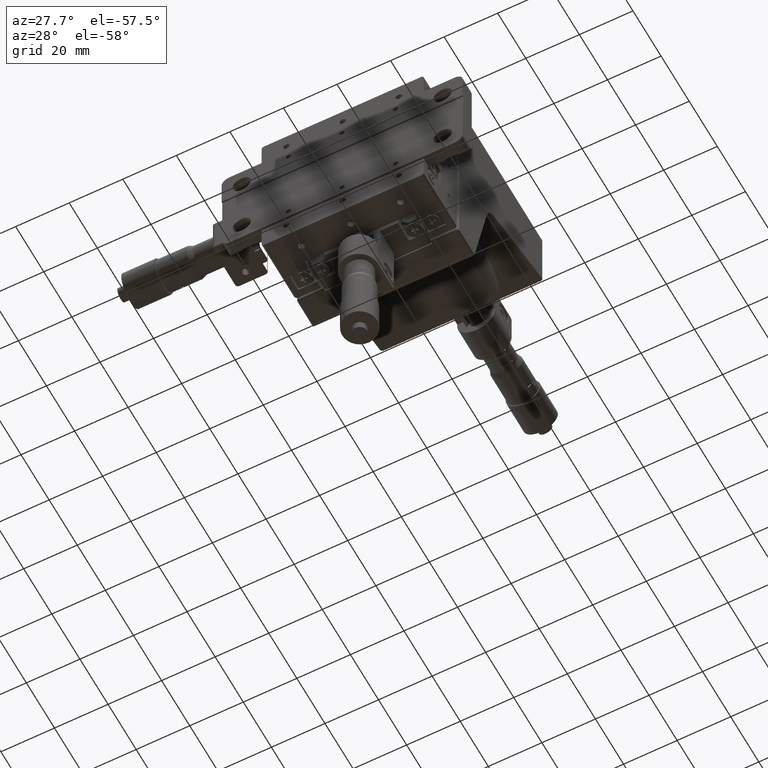
[diagram: clean part render]
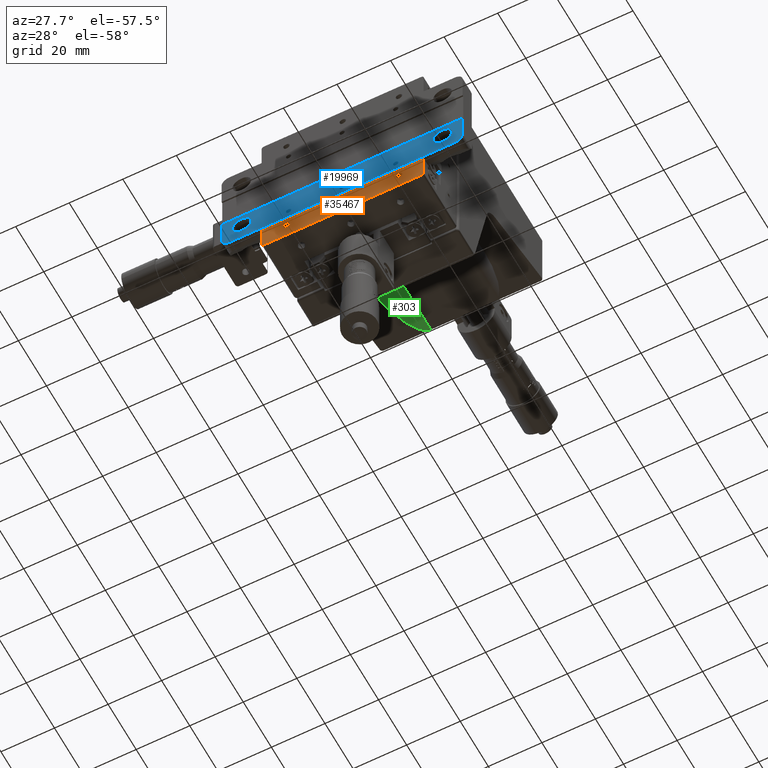
[diagram: same view with three faces highlighted in distinct colors, each labeled with its STEP entity id]
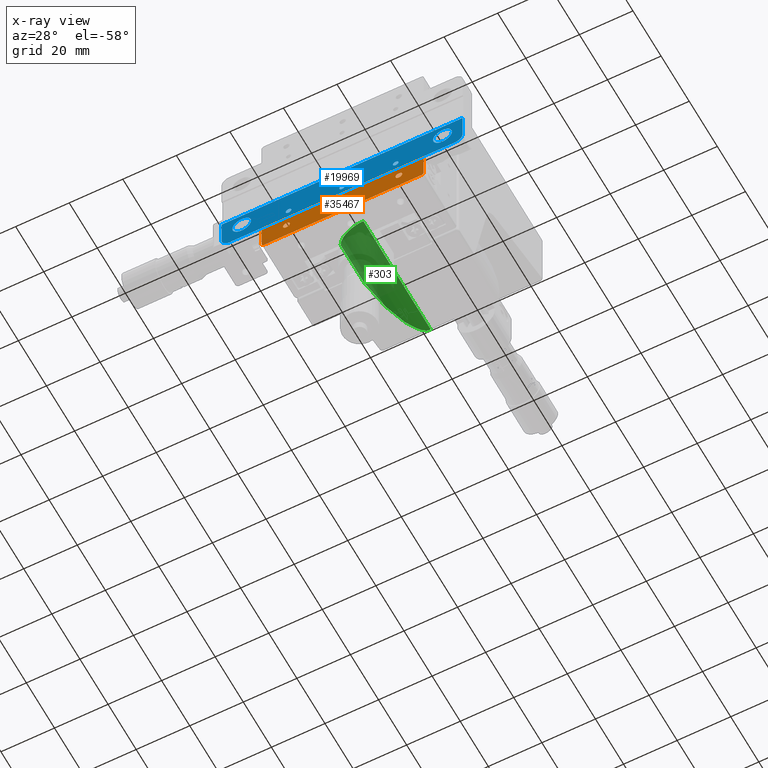
[diagram: x-ray of the same camera — body ghosted, the three highlighted faces saturated]
A machine part, auxiliary view with three faces highlighted in distinct colors.
The next image is the same camera in x-ray (body ghosted, the three faces saturated) — at least one of them is partly hidden behind the body in this view.
Their STEP definitions:

[orange] entity #35467 — the highlighted planar face has unit normal (0, 1, 0).
#748 = CIRCLE ( 'NONE', #40161, 1.249999999999987100 ) ;
#2029 = DIRECTION ( 'NONE',  ( 0.0000000000000000000, 0.0000000000000000000, -1.000000000000000000 ) ) ;
#2791 = ORIENTED_EDGE ( 'NONE', *, *, #20916, .T. ) ;
#3450 = CARTESIAN_POINT ( 'NONE',  ( 21.00000000000000400, 0.1999999999999952100, -23.00000000000003600 ) ) ;
#4848 = ORIENTED_EDGE ( 'NONE', *, *, #34387, .F. ) ;
#8923 = VERTEX_POINT ( 'NONE', #3450 ) ;
#10701 = VERTEX_POINT ( 'NONE', #59562 ) ;
#12714 = VERTEX_POINT ( 'NONE', #47303 ) ;
#12719 = CARTESIAN_POINT ( 'NONE',  ( -21.00000000000000400, 0.1999999999999952100, -23.00000000000003600 ) ) ;
#12756 = CARTESIAN_POINT ( 'NONE',  ( -30.25000000000000000, 0.1999999999999895200, -20.50000000000000000 ) ) ;
#13141 = FACE_BOUND ( 'NONE', #52831, .T. ) ;
#13299 = VERTEX_POINT ( 'NONE', #65098 ) ;
#15661 = VERTEX_POINT ( 'NONE', #12756 ) ;
#17523 = CARTESIAN_POINT ( 'NONE',  ( 1.665334536938784000E-017, 0.1999999999999952100, -24.25000000000002100 ) ) ;
#17960 = CIRCLE ( 'NONE', #31331, 1.249999999999987100 ) ;
#18312 = EDGE_CURVE ( 'NONE', #83073, #12714, #69806, .T. ) ;
#18916 = ORIENTED_EDGE ( 'NONE', *, *, #77470, .F. ) ;
#19535 = AXIS2_PLACEMENT_3D ( 'NONE', #75951, #34976, #82901 ) ;
#20184 = AXIS2_PLACEMENT_3D ( 'NONE', #37349, #85286, #44263 ) ;
#20916 = EDGE_CURVE ( 'NONE', #12714, #31267, #71189, .T. ) ;
#22826 = VECTOR ( 'NONE', #43888, 1000.000000000000000 ) ;
#23858 = CARTESIAN_POINT ( 'NONE',  ( 1.697341952628057400E-016, 0.1999999999999952100, -23.00000000000003600 ) ) ;
#24392 = DIRECTION ( 'NONE',  ( 0.0000000000000000000, 0.0000000000000000000, -1.000000000000000000 ) ) ;
#24784 = CIRCLE ( 'NONE', #19535, 1.249999999999987100 ) ;
#24889 = CIRCLE ( 'NONE', #66254, 1.249999999999987100 ) ;
#25031 = CARTESIAN_POINT ( 'NONE',  ( 1.665334536938784000E-017, 0.1999999999999952100, -24.25000000000002100 ) ) ;
#26727 = CARTESIAN_POINT ( 'NONE',  ( 21.00000000000000400, 0.1999999999999952100, -24.25000000000002100 ) ) ;
#26891 = ORIENTED_EDGE ( 'NONE', *, *, #70702, .F. ) ;
#27270 = CARTESIAN_POINT ( 'NONE',  ( 29.25000000000000000, 0.1999999999999966200, -29.25000000000000000 ) ) ;
#27381 = DIRECTION ( 'NONE',  ( -0.0000000000000000000, -0.0000000000000000000, -1.000000000000000000 ) ) ;
#27407 = ORIENTED_EDGE ( 'NONE', *, *, #32946, .F. ) ;
#28844 = CARTESIAN_POINT ( 'NONE',  ( -30.25000000000000000, 0.1999999999999966200, -29.25000000000000000 ) ) ;
#30087 = EDGE_CURVE ( 'NONE', #82030, #83073, #82127, .T. ) ;
#31267 = VERTEX_POINT ( 'NONE', #66737 ) ;
#31331 = AXIS2_PLACEMENT_3D ( 'NONE', #72314, #31347, #79200 ) ;
#31347 = DIRECTION ( 'NONE',  ( -0.0000000000000000000, -1.000000000000000000, -0.0000000000000000000 ) ) ;
#31881 = DIRECTION ( 'NONE',  ( 0.0000000000000000000, 0.0000000000000000000, -1.000000000000000000 ) ) ;
#32946 = EDGE_CURVE ( 'NONE', #8923, #10701, #17960, .T. ) ;
#33563 = DIRECTION ( 'NONE',  ( 0.0000000000000000000, 0.0000000000000000000, -1.000000000000000000 ) ) ;
#34116 = DIRECTION ( 'NONE',  ( 0.0000000000000000000, 0.0000000000000000000, 1.000000000000000000 ) ) ;
#34331 = VERTEX_POINT ( 'NONE', #23858 ) ;
#34387 = EDGE_CURVE ( 'NONE', #15661, #46945, #34747, .T. ) ;
#34747 = LINE ( 'NONE', #51674, #52999 ) ;
#34780 = PLANE ( 'NONE',  #73370 ) ;
#34976 = DIRECTION ( 'NONE',  ( -0.0000000000000000000, -1.000000000000000000, -0.0000000000000000000 ) ) ;
#35363 = DIRECTION ( 'NONE',  ( 0.0000000000000000000, 1.000000000000000000, 0.0000000000000000000 ) ) ;
#35467 = ADVANCED_FACE ( 'NONE', ( #49448, #65556, #13141, #71951 ), #34780, .F. ) ;
#35785 = EDGE_CURVE ( 'NONE', #62178, #73474, #24784, .T. ) ;
#36963 = CARTESIAN_POINT ( 'NONE',  ( 30.25000000000000000, 0.1999999999999966200, 30.25000000000000000 ) ) ;
#37349 = CARTESIAN_POINT ( 'NONE',  ( -29.25000000000000000, 0.1999999999999966200, -29.25000000000000000 ) ) ;
#37757 = EDGE_CURVE ( 'NONE', #34331, #13299, #748, .T. ) ;
#39579 = ORIENTED_EDGE ( 'NONE', *, *, #30087, .T. ) ;
#40161 = AXIS2_PLACEMENT_3D ( 'NONE', #25031, #72858, #31881 ) ;
#40830 = ORIENTED_EDGE ( 'NONE', *, *, #86173, .F. ) ;
#42874 = EDGE_CURVE ( 'NONE', #13299, #34331, #59122, .T. ) ;
#42955 = DIRECTION ( 'NONE',  ( -0.0000000000000000000, -1.000000000000000000, -0.0000000000000000000 ) ) ;
#43888 = DIRECTION ( 'NONE',  ( -0.0000000000000000000, -0.0000000000000000000, -1.000000000000000000 ) ) ;
#44263 = DIRECTION ( 'NONE',  ( 0.0000000000000000000, 0.0000000000000000000, 1.000000000000000000 ) ) ;
#45335 = EDGE_LOOP ( 'NONE', ( #26891, #27407 ) ) ;
#46142 = ORIENTED_EDGE ( 'NONE', *, *, #35785, .F. ) ;
#46250 = VECTOR ( 'NONE', #27381, 1000.000000000000000 ) ;
#46945 = VERTEX_POINT ( 'NONE', #87976 ) ;
#47303 = CARTESIAN_POINT ( 'NONE',  ( 29.25000000000000000, 0.1999999999999966200, -30.25000000000000000 ) ) ;
#49028 = AXIS2_PLACEMENT_3D ( 'NONE', #83990, #42955, #2029 ) ;
#49448 = FACE_BOUND ( 'NONE', #45335, .T. ) ;
#50912 = AXIS2_PLACEMENT_3D ( 'NONE', #17523, #65401, #24392 ) ;
#51105 = EDGE_LOOP ( 'NONE', ( #46142, #18916 ) ) ;
#51632 = VECTOR ( 'NONE', #55099, 1000.000000000000000 ) ;
#51674 = CARTESIAN_POINT ( 'NONE',  ( -30.25000000000000000, 0.1999999999999895200, -20.50000000000000000 ) ) ;
#52831 = EDGE_LOOP ( 'NONE', ( #88402, #61485 ) ) ;
#52999 = VECTOR ( 'NONE', #86368, 1000.000000000000000 ) ;
#55099 = DIRECTION ( 'NONE',  ( 1.000000000000000000, 0.0000000000000000000, 0.0000000000000000000 ) ) ;
#55606 = CARTESIAN_POINT ( 'NONE',  ( -29.25000000000000000, 0.1999999999999966200, -30.25000000000000000 ) ) ;
#55895 = CIRCLE ( 'NONE', #49028, 1.249999999999987100 ) ;
#59122 = CIRCLE ( 'NONE', #50912, 1.249999999999987100 ) ;
#59562 = CARTESIAN_POINT ( 'NONE',  ( 21.00000000000000400, 0.1999999999999952100, -25.50000000000000700 ) ) ;
#59766 = EDGE_LOOP ( 'NONE', ( #64955, #39579, #70784, #2791, #40830, #4848 ) ) ;
#61485 = ORIENTED_EDGE ( 'NONE', *, *, #37757, .F. ) ;
#62178 = VERTEX_POINT ( 'NONE', #74306 ) ;
#62420 = AXIS2_PLACEMENT_3D ( 'NONE', #27270, #75070, #34116 ) ;
#64955 = ORIENTED_EDGE ( 'NONE', *, *, #86467, .T. ) ;
#65098 = CARTESIAN_POINT ( 'NONE',  ( 1.665334536938784000E-017, 0.1999999999999952100, -25.50000000000000700 ) ) ;
#65401 = DIRECTION ( 'NONE',  ( -0.0000000000000000000, -1.000000000000000000, -0.0000000000000000000 ) ) ;
#65556 = FACE_BOUND ( 'NONE', #51105, .T. ) ;
#66254 = AXIS2_PLACEMENT_3D ( 'NONE', #26727, #74544, #33563 ) ;
#66737 = CARTESIAN_POINT ( 'NONE',  ( 30.25000000000000000, 0.1999999999999966200, -29.25000000000000000 ) ) ;
#69806 = LINE ( 'NONE', #82313, #51632 ) ;
#70702 = EDGE_CURVE ( 'NONE', #10701, #8923, #24889, .T. ) ;
#70784 = ORIENTED_EDGE ( 'NONE', *, *, #18312, .T. ) ;
#71189 = CIRCLE ( 'NONE', #62420, 1.000000000000000900 ) ;
#71951 = FACE_OUTER_BOUND ( 'NONE', #59766, .T. ) ;
#72314 = CARTESIAN_POINT ( 'NONE',  ( 21.00000000000000400, 0.1999999999999952100, -24.25000000000002100 ) ) ;
#72858 = DIRECTION ( 'NONE',  ( -0.0000000000000000000, -1.000000000000000000, -0.0000000000000000000 ) ) ;
#73370 = AXIS2_PLACEMENT_3D ( 'NONE', #76344, #35363, #83305 ) ;
#73474 = VERTEX_POINT ( 'NONE', #12719 ) ;
#74306 = CARTESIAN_POINT ( 'NONE',  ( -21.00000000000000400, 0.1999999999999952100, -25.50000000000000700 ) ) ;
#74544 = DIRECTION ( 'NONE',  ( -0.0000000000000000000, -1.000000000000000000, -0.0000000000000000000 ) ) ;
#75070 = DIRECTION ( 'NONE',  ( -0.0000000000000000000, -1.000000000000000000, -0.0000000000000000000 ) ) ;
#75951 = CARTESIAN_POINT ( 'NONE',  ( -21.00000000000000400, 0.1999999999999952100, -24.25000000000002100 ) ) ;
#76344 = CARTESIAN_POINT ( 'NONE',  ( -30.25000000000000000, 0.1999999999999966200, 30.25000000000000000 ) ) ;
#77368 = LINE ( 'NONE', #36963, #22826 ) ;
#77470 = EDGE_CURVE ( 'NONE', #73474, #62178, #55895, .T. ) ;
#79200 = DIRECTION ( 'NONE',  ( 0.0000000000000000000, 0.0000000000000000000, -1.000000000000000000 ) ) ;
#81527 = CARTESIAN_POINT ( 'NONE',  ( -30.25000000000000000, 0.1999999999999966200, 30.25000000000000000 ) ) ;
#82030 = VERTEX_POINT ( 'NONE', #28844 ) ;
#82127 = CIRCLE ( 'NONE', #20184, 1.000000000000000900 ) ;
#82313 = CARTESIAN_POINT ( 'NONE',  ( -30.25000000000000000, 0.1999999999999966200, -30.25000000000000000 ) ) ;
#82901 = DIRECTION ( 'NONE',  ( 0.0000000000000000000, 0.0000000000000000000, -1.000000000000000000 ) ) ;
#83073 = VERTEX_POINT ( 'NONE', #55606 ) ;
#83305 = DIRECTION ( 'NONE',  ( 0.0000000000000000000, -0.0000000000000000000, 1.000000000000000000 ) ) ;
#83990 = CARTESIAN_POINT ( 'NONE',  ( -21.00000000000000400, 0.1999999999999952100, -24.25000000000002100 ) ) ;
#84807 = LINE ( 'NONE', #81527, #46250 ) ;
#85286 = DIRECTION ( 'NONE',  ( -0.0000000000000000000, -1.000000000000000000, -0.0000000000000000000 ) ) ;
#86173 = EDGE_CURVE ( 'NONE', #46945, #31267, #77368, .T. ) ;
#86368 = DIRECTION ( 'NONE',  ( 1.000000000000000000, -0.0000000000000000000, -0.0000000000000000000 ) ) ;
#86467 = EDGE_CURVE ( 'NONE', #15661, #82030, #84807, .T. ) ;
#87976 = CARTESIAN_POINT ( 'NONE',  ( 30.25000000000000000, 0.1999999999999966200, -20.50000000000000400 ) ) ;
#88402 = ORIENTED_EDGE ( 'NONE', *, *, #42874, .F. ) ;

[blue] entity #19969 — the highlighted planar face has unit normal (-0, -1, 0).
#62 = EDGE_LOOP ( 'NONE', ( #1255, #32005 ) ) ;
#712 = CARTESIAN_POINT ( 'NONE',  ( 19.99999999999983700, -0.1999999999999693100, -16.75000000000074300 ) ) ;
#865 = DIRECTION ( 'NONE',  ( 1.000000000000000000, -1.110223024625156500E-016, -1.084202172485504400E-017 ) ) ;
#1209 = VERTEX_POINT ( 'NONE', #26453 ) ;
#1255 = ORIENTED_EDGE ( 'NONE', *, *, #64187, .T. ) ;
#1530 = EDGE_CURVE ( 'NONE', #81261, #15958, #6146, .T. ) ;
#1975 = FACE_BOUND ( 'NONE', #61776, .T. ) ;
#2619 = CIRCLE ( 'NONE', #17566, 3.000000000000002700 ) ;
#3800 = CIRCLE ( 'NONE', #73749, 3.499999999999996000 ) ;
#4179 = DIRECTION ( 'NONE',  ( -1.000000000000000000, 1.084202172485505700E-016, 0.0000000000000000000 ) ) ;
#5610 = DIRECTION ( 'NONE',  ( -1.000000000000000000, 1.084202172485503400E-016, 0.0000000000000000000 ) ) ;
#5667 = VERTEX_POINT ( 'NONE', #67631 ) ;
#5931 = CIRCLE ( 'NONE', #23080, 1.024999999999998100 ) ;
#6146 = CIRCLE ( 'NONE', #65355, 3.500000000000003100 ) ;
#6316 = EDGE_CURVE ( 'NONE', #60500, #42875, #75830, .T. ) ;
#7073 = ORIENTED_EDGE ( 'NONE', *, *, #31813, .T. ) ;
#7671 = DIRECTION ( 'NONE',  ( -1.000000000000000000, 1.057758217059030600E-016, 0.0000000000000000000 ) ) ;
#7948 = EDGE_LOOP ( 'NONE', ( #66211, #31919, #8658, #75323, #18353, #60053 ) ) ;
#8640 = CIRCLE ( 'NONE', #50167, 3.499999999999996000 ) ;
#8658 = ORIENTED_EDGE ( 'NONE', *, *, #69628, .T. ) ;
#9203 = CARTESIAN_POINT ( 'NONE',  ( 41.99999999999999300, -0.1999999999999710300, -20.00000000000000000 ) ) ;
#9610 = VECTOR ( 'NONE', #11322, 1000.000000000000000 ) ;
#9791 = EDGE_LOOP ( 'NONE', ( #22800, #64966 ) ) ;
#10412 = VERTEX_POINT ( 'NONE', #35050 ) ;
#11281 = EDGE_CURVE ( 'NONE', #10412, #42875, #27750, .T. ) ;
#11322 = DIRECTION ( 'NONE',  ( -1.000000000000000000, 1.110223024625156500E-016, 1.084202172485504400E-017 ) ) ;
#11845 = EDGE_CURVE ( 'NONE', #60500, #37034, #68246, .T. ) ;
#13645 = CARTESIAN_POINT ( 'NONE',  ( -1.734723475976807100E-013, -0.1999999999999658200, -16.75000000000053600 ) ) ;
#13857 = DIRECTION ( 'NONE',  ( -8.326672684688671600E-017, -1.000000000000000000, 0.0000000000000000000 ) ) ;
#14100 = CARTESIAN_POINT ( 'NONE',  ( -45.00000000000000700, -0.1999999999999606300, -17.00000000000000000 ) ) ;
#14288 = DIRECTION ( 'NONE',  ( 0.0000000000000000000, 0.0000000000000000000, 1.000000000000000000 ) ) ;
#15660 = CARTESIAN_POINT ( 'NONE',  ( 37.49999999999986500, -0.1999999999999710300, -12.50000000000093100 ) ) ;
#15958 = VERTEX_POINT ( 'NONE', #37996 ) ;
#17566 = AXIS2_PLACEMENT_3D ( 'NONE', #39993, #87876, #46905 ) ;
#17932 = CARTESIAN_POINT ( 'NONE',  ( -34.00000000000014200, -0.1999999999999626500, -12.50000000000014200 ) ) ;
#18353 = ORIENTED_EDGE ( 'NONE', *, *, #6316, .F. ) ;
#18775 = LINE ( 'NONE', #22727, #69044 ) ;
#19969 = ADVANCED_FACE ( 'NONE', ( #20129, #38308, #74695, #1975, #56551, #72593 ), #41499, .T. ) ;
#20129 = FACE_BOUND ( 'NONE', #81143, .T. ) ;
#20479 = DIRECTION ( 'NONE',  ( -1.000000000000000000, 1.057758217059030600E-016, 0.0000000000000000000 ) ) ;
#21754 = CARTESIAN_POINT ( 'NONE',  ( 1.024999999999824700, -0.1999999999999659000, -16.75000000000053600 ) ) ;
#22554 = DIRECTION ( 'NONE',  ( -1.000000000000000000, 1.084202172485503400E-016, 0.0000000000000000000 ) ) ;
#22727 = CARTESIAN_POINT ( 'NONE',  ( 45.00000000000000000, -0.1999999999999710300, -20.00000000000000000 ) ) ;
#22800 = ORIENTED_EDGE ( 'NONE', *, *, #70666, .T. ) ;
#23080 = AXIS2_PLACEMENT_3D ( 'NONE', #25557, #73364, #32384 ) ;
#23928 = EDGE_CURVE ( 'NONE', #58017, #72895, #5931, .T. ) ;
#24949 = AXIS2_PLACEMENT_3D ( 'NONE', #38970, #86892, #45892 ) ;
#25421 = CARTESIAN_POINT ( 'NONE',  ( 45.00000000000000000, -0.1999999999999710300, -20.00000000000000000 ) ) ;
#25557 = CARTESIAN_POINT ( 'NONE',  ( -20.00000000000018100, -0.1999999999999641000, -16.75000000000032300 ) ) ;
#25574 = CARTESIAN_POINT ( 'NONE',  ( -1.734723475976807100E-013, -0.1999999999999658200, -16.75000000000053600 ) ) ;
#26063 = EDGE_CURVE ( 'NONE', #42408, #62515, #8640, .T. ) ;
#26310 = CARTESIAN_POINT ( 'NONE',  ( 33.99999999999986500, -0.1999999999999706500, -12.50000000000093100 ) ) ;
#26453 = CARTESIAN_POINT ( 'NONE',  ( 18.97499999999983800, -0.1999999999999692000, -16.75000000000074300 ) ) ;
#26936 = EDGE_CURVE ( 'NONE', #62515, #42408, #3800, .T. ) ;
#27750 = LINE ( 'NONE', #86331, #9610 ) ;
#29080 = CIRCLE ( 'NONE', #88584, 1.024999999999998100 ) ;
#29621 = CARTESIAN_POINT ( 'NONE',  ( -41.99999999999999300, -0.1999999999999623700, -20.00000000000000000 ) ) ;
#30480 = ORIENTED_EDGE ( 'NONE', *, *, #23928, .T. ) ;
#31581 = CIRCLE ( 'NONE', #49035, 1.024999999999998100 ) ;
#31813 = EDGE_CURVE ( 'NONE', #15958, #81261, #32161, .T. ) ;
#31919 = ORIENTED_EDGE ( 'NONE', *, *, #47238, .T. ) ;
#32005 = ORIENTED_EDGE ( 'NONE', *, *, #43978, .T. ) ;
#32161 = CIRCLE ( 'NONE', #55329, 3.500000000000003100 ) ;
#32384 = DIRECTION ( 'NONE',  ( -1.000000000000000000, 1.057758217059030600E-016, 0.0000000000000000000 ) ) ;
#32400 = DIRECTION ( 'NONE',  ( -1.000000000000000000, 1.057758217059030600E-016, 0.0000000000000000000 ) ) ;
#34342 = CARTESIAN_POINT ( 'NONE',  ( -20.00000000000018100, -0.1999999999999641000, -16.75000000000032300 ) ) ;
#35050 = CARTESIAN_POINT ( 'NONE',  ( 45.00000000000000000, -0.1999999999999710300, -6.999999999999774400 ) ) ;
#35054 = CARTESIAN_POINT ( 'NONE',  ( -1.025000000000171600, -0.1999999999999657300, -16.75000000000053600 ) ) ;
#36215 = LINE ( 'NONE', #25421, #70501 ) ;
#37034 = VERTEX_POINT ( 'NONE', #29621 ) ;
#37996 = CARTESIAN_POINT ( 'NONE',  ( 40.99999999999987200, -0.1999999999999713400, -12.50000000000093100 ) ) ;
#38308 = FACE_BOUND ( 'NONE', #62, .T. ) ;
#38587 = DIRECTION ( 'NONE',  ( 8.326672684688671600E-017, 1.000000000000000000, 0.0000000000000000000 ) ) ;
#38970 = CARTESIAN_POINT ( 'NONE',  ( 19.99999999999983700, -0.1999999999999693100, -16.75000000000074300 ) ) ;
#39993 = CARTESIAN_POINT ( 'NONE',  ( 41.99999999999999300, -0.1999999999999710300, -17.00000000000000000 ) ) ;
#41205 = DIRECTION ( 'NONE',  ( -1.000000000000000000, 1.057758217059030600E-016, 0.0000000000000000000 ) ) ;
#41499 = PLANE ( 'NONE',  #70891 ) ;
#41798 = DIRECTION ( 'NONE',  ( -1.110223024625156500E-016, -1.000000000000000000, 3.009265538105057700E-034 ) ) ;
#42408 = VERTEX_POINT ( 'NONE', #17932 ) ;
#42875 = VERTEX_POINT ( 'NONE', #85725 ) ;
#43978 = EDGE_CURVE ( 'NONE', #58849, #72372, #56615, .T. ) ;
#45074 = DIRECTION ( 'NONE',  ( 8.326672684688671600E-017, 1.000000000000000000, 0.0000000000000000000 ) ) ;
#45892 = DIRECTION ( 'NONE',  ( -1.000000000000000000, 1.057758217059030600E-016, 0.0000000000000000000 ) ) ;
#46517 = DIRECTION ( 'NONE',  ( 8.326672684688671600E-017, 1.000000000000000000, 0.0000000000000000000 ) ) ;
#46878 = AXIS2_PLACEMENT_3D ( 'NONE', #712, #48555, #7671 ) ;
#46905 = DIRECTION ( 'NONE',  ( 1.000000000000000000, -1.084202172485503400E-016, 0.0000000000000000000 ) ) ;
#47238 = EDGE_CURVE ( 'NONE', #59730, #5667, #2619, .T. ) ;
#48555 = DIRECTION ( 'NONE',  ( 8.326672684688671600E-017, 1.000000000000000000, 0.0000000000000000000 ) ) ;
#48650 = EDGE_CURVE ( 'NONE', #56497, #1209, #75945, .T. ) ;
#49035 = AXIS2_PLACEMENT_3D ( 'NONE', #13645, #61448, #20479 ) ;
#50167 = AXIS2_PLACEMENT_3D ( 'NONE', #86067, #45074, #4179 ) ;
#50188 = DIRECTION ( 'NONE',  ( 0.0000000000000000000, 0.0000000000000000000, 1.000000000000000000 ) ) ;
#50931 = CARTESIAN_POINT ( 'NONE',  ( -41.00000000000013500, -0.1999999999999619900, -12.50000000000014200 ) ) ;
#53482 = ORIENTED_EDGE ( 'NONE', *, *, #1530, .T. ) ;
#53789 = CIRCLE ( 'NONE', #24949, 1.024999999999998100 ) ;
#54792 = CARTESIAN_POINT ( 'NONE',  ( -41.99999999999999300, -0.1999999999999623700, -17.00000000000000000 ) ) ;
#55233 = CARTESIAN_POINT ( 'NONE',  ( -45.00000000000000700, -0.1999999999999606300, -20.00000000000000000 ) ) ;
#55329 = AXIS2_PLACEMENT_3D ( 'NONE', #87520, #46517, #5610 ) ;
#55383 = EDGE_CURVE ( 'NONE', #59730, #37034, #36215, .T. ) ;
#56497 = VERTEX_POINT ( 'NONE', #75333 ) ;
#56551 = FACE_BOUND ( 'NONE', #71674, .T. ) ;
#56615 = CIRCLE ( 'NONE', #83717, 1.024999999999998100 ) ;
#57681 = VECTOR ( 'NONE', #14288, 1000.000000000000000 ) ;
#58017 = VERTEX_POINT ( 'NONE', #81731 ) ;
#58849 = VERTEX_POINT ( 'NONE', #21754 ) ;
#59180 = CARTESIAN_POINT ( 'NONE',  ( -18.97500000000018300, -0.1999999999999641800, -16.75000000000032300 ) ) ;
#59351 = AXIS2_PLACEMENT_3D ( 'NONE', #54792, #13857, #61666 ) ;
#59730 = VERTEX_POINT ( 'NONE', #9203 ) ;
#60053 = ORIENTED_EDGE ( 'NONE', *, *, #11845, .T. ) ;
#60500 = VERTEX_POINT ( 'NONE', #14100 ) ;
#60640 = ORIENTED_EDGE ( 'NONE', *, *, #26063, .T. ) ;
#61448 = DIRECTION ( 'NONE',  ( 8.326672684688671600E-017, 1.000000000000000000, 0.0000000000000000000 ) ) ;
#61666 = DIRECTION ( 'NONE',  ( 1.000000000000000000, -1.084202172485503400E-016, 0.0000000000000000000 ) ) ;
#61776 = EDGE_LOOP ( 'NONE', ( #65888, #60640 ) ) ;
#62515 = VERTEX_POINT ( 'NONE', #50931 ) ;
#63519 = DIRECTION ( 'NONE',  ( 8.326672684688671600E-017, 1.000000000000000000, 0.0000000000000000000 ) ) ;
#64187 = EDGE_CURVE ( 'NONE', #72372, #58849, #31581, .T. ) ;
#64966 = ORIENTED_EDGE ( 'NONE', *, *, #48650, .T. ) ;
#65355 = AXIS2_PLACEMENT_3D ( 'NONE', #15660, #63519, #22554 ) ;
#65888 = ORIENTED_EDGE ( 'NONE', *, *, #26936, .T. ) ;
#66211 = ORIENTED_EDGE ( 'NONE', *, *, #55383, .F. ) ;
#67631 = CARTESIAN_POINT ( 'NONE',  ( 45.00000000000000000, -0.1999999999999710300, -17.00000000000000000 ) ) ;
#68246 = CIRCLE ( 'NONE', #59351, 3.000000000000002700 ) ;
#69044 = VECTOR ( 'NONE', #50188, 1000.000000000000000 ) ;
#69628 = EDGE_CURVE ( 'NONE', #5667, #10412, #18775, .T. ) ;
#70501 = VECTOR ( 'NONE', #73534, 1000.000000000000000 ) ;
#70666 = EDGE_CURVE ( 'NONE', #1209, #56497, #53789, .T. ) ;
#70891 = AXIS2_PLACEMENT_3D ( 'NONE', #82839, #41798, #865 ) ;
#71341 = EDGE_CURVE ( 'NONE', #72895, #58017, #29080, .T. ) ;
#71674 = EDGE_LOOP ( 'NONE', ( #53482, #7073 ) ) ;
#72372 = VERTEX_POINT ( 'NONE', #35054 ) ;
#72593 = FACE_OUTER_BOUND ( 'NONE', #7948, .T. ) ;
#72895 = VERTEX_POINT ( 'NONE', #59180 ) ;
#73364 = DIRECTION ( 'NONE',  ( 8.326672684688671600E-017, 1.000000000000000000, 0.0000000000000000000 ) ) ;
#73376 = DIRECTION ( 'NONE',  ( 8.326672684688671600E-017, 1.000000000000000000, 0.0000000000000000000 ) ) ;
#73534 = DIRECTION ( 'NONE',  ( -1.000000000000000000, 1.110223024625156500E-016, 1.084202172485504400E-017 ) ) ;
#73749 = AXIS2_PLACEMENT_3D ( 'NONE', #79600, #38587, #86505 ) ;
#74695 = FACE_BOUND ( 'NONE', #9791, .T. ) ;
#75323 = ORIENTED_EDGE ( 'NONE', *, *, #11281, .T. ) ;
#75333 = CARTESIAN_POINT ( 'NONE',  ( 21.02499999999983500, -0.1999999999999693700, -16.75000000000074300 ) ) ;
#75830 = LINE ( 'NONE', #55233, #57681 ) ;
#75945 = CIRCLE ( 'NONE', #46878, 1.024999999999998100 ) ;
#79600 = CARTESIAN_POINT ( 'NONE',  ( -37.50000000000013500, -0.1999999999999623700, -12.50000000000014200 ) ) ;
#81143 = EDGE_LOOP ( 'NONE', ( #30480, #82630 ) ) ;
#81261 = VERTEX_POINT ( 'NONE', #26310 ) ;
#81731 = CARTESIAN_POINT ( 'NONE',  ( -21.02500000000018000, -0.1999999999999639800, -16.75000000000032300 ) ) ;
#82226 = DIRECTION ( 'NONE',  ( 8.326672684688671600E-017, 1.000000000000000000, 0.0000000000000000000 ) ) ;
#82630 = ORIENTED_EDGE ( 'NONE', *, *, #71341, .T. ) ;
#82839 = CARTESIAN_POINT ( 'NONE',  ( 45.00000000000000000, -0.1999999999999710300, -20.00000000000000000 ) ) ;
#83717 = AXIS2_PLACEMENT_3D ( 'NONE', #25574, #73376, #32400 ) ;
#85725 = CARTESIAN_POINT ( 'NONE',  ( -45.00000000000000700, -0.1999999999999606300, -6.999999999999772600 ) ) ;
#86067 = CARTESIAN_POINT ( 'NONE',  ( -37.50000000000013500, -0.1999999999999623700, -12.50000000000014200 ) ) ;
#86331 = CARTESIAN_POINT ( 'NONE',  ( 45.00000000000000000, -0.1999999999999710300, -6.999999999999774400 ) ) ;
#86505 = DIRECTION ( 'NONE',  ( -1.000000000000000000, 1.084202172485505700E-016, 0.0000000000000000000 ) ) ;
#86892 = DIRECTION ( 'NONE',  ( 8.326672684688671600E-017, 1.000000000000000000, 0.0000000000000000000 ) ) ;
#87520 = CARTESIAN_POINT ( 'NONE',  ( 37.49999999999986500, -0.1999999999999710300, -12.50000000000093100 ) ) ;
#87876 = DIRECTION ( 'NONE',  ( -8.326672684688671600E-017, -1.000000000000000000, 0.0000000000000000000 ) ) ;
#88584 = AXIS2_PLACEMENT_3D ( 'NONE', #34342, #82226, #41205 ) ;

[green] entity #303 — the highlighted cylindrical surface (edge-blend (fillet) strip) has radius 8.5 mm, axis along (0, 1, -0).
#303 = ADVANCED_FACE ( 'NONE', ( #37672 ), #83761, .F. ) ;
#725 = CARTESIAN_POINT ( 'NONE',  ( -11.74999999999976400, 37.29999999999989800, 23.00000000000203600 ) ) ;
#1001 = EDGE_LOOP ( 'NONE', ( #82053, #70472, #22844, #11393 ) ) ;
#3085 = LINE ( 'NONE', #725, #37239 ) ;
#3671 = EDGE_CURVE ( 'NONE', #19715, #33257, #46790, .T. ) ;
#4411 = CARTESIAN_POINT ( 'NONE',  ( -11.74999999999975700, 85.29984404295237300, 23.00000000000203200 ) ) ;
#11393 = ORIENTED_EDGE ( 'NONE', *, *, #29165, .T. ) ;
#13401 = DIRECTION ( 'NONE',  ( -1.040834085586085400E-014, 0.0000000000000000000, -1.000000000000000000 ) ) ;
#19715 = VERTEX_POINT ( 'NONE', #70877 ) ;
#22510 = LINE ( 'NONE', #65745, #56740 ) ;
#22844 = ORIENTED_EDGE ( 'NONE', *, *, #73851, .F. ) ;
#24708 = AXIS2_PLACEMENT_3D ( 'NONE', #38902, #86814, #45825 ) ;
#25726 = VERTEX_POINT ( 'NONE', #85589 ) ;
#26232 = DIRECTION ( 'NONE',  ( 1.535230276239501100E-016, 1.000000000000000000, -2.374402757743618900E-017 ) ) ;
#29165 = EDGE_CURVE ( 'NONE', #67900, #19715, #22510, .T. ) ;
#31576 = CARTESIAN_POINT ( 'NONE',  ( -16.72918471982845600, 85.29984404295238700, 23.00000000000208500 ) ) ;
#33257 = VERTEX_POINT ( 'NONE', #63030 ) ;
#37239 = VECTOR ( 'NONE', #41663, 1000.000000000000000 ) ;
#37672 = FACE_OUTER_BOUND ( 'NONE', #1001, .T. ) ;
#38902 = CARTESIAN_POINT ( 'NONE',  ( -11.74999999999984700, 37.29999999999989800, 14.50000000000203900 ) ) ;
#41663 = DIRECTION ( 'NONE',  ( 1.535230276239501100E-016, 1.000000000000000000, -2.374402757743618900E-017 ) ) ;
#45825 = DIRECTION ( 'NONE',  ( -1.040834085586085400E-014, 0.0000000000000000000, -1.000000000000000000 ) ) ;
#46790 =( BOUNDED_CURVE ( )  B_SPLINE_CURVE ( 3, ( #86315, #72555, #31576, #4411 ),
 .UNSPECIFIED., .F., .F. ) 
 B_SPLINE_CURVE_WITH_KNOTS ( ( 4, 4 ),
 ( 4.712388980384687900, 6.283185307179586200 ),
 .UNSPECIFIED. ) 
 CURVE ( )  GEOMETRIC_REPRESENTATION_ITEM ( )  RATIONAL_B_SPLINE_CURVE ( ( 1.000000000000000000, 0.8047378541243646000, 0.8047378541243646000, 1.000000000000000000 ) ) 
 REPRESENTATION_ITEM ( '' )  );
#53196 = CIRCLE ( 'NONE', #24708, 8.499999999999991100 ) ;
#55513 = AXIS2_PLACEMENT_3D ( 'NONE', #74638, #26232, #13401 ) ;
#55762 = CARTESIAN_POINT ( 'NONE',  ( -20.24999999999984400, 37.29999999999989800, 14.50000000000213000 ) ) ;
#56740 = VECTOR ( 'NONE', #72605, 1000.000000000000000 ) ;
#62339 = EDGE_CURVE ( 'NONE', #25726, #33257, #3085, .T. ) ;
#63030 = CARTESIAN_POINT ( 'NONE',  ( -11.74999999999975700, 85.29984404295237300, 23.00000000000203200 ) ) ;
#65745 = CARTESIAN_POINT ( 'NONE',  ( -20.24999999999984400, 37.29999999999989800, 14.50000000000213000 ) ) ;
#67900 = VERTEX_POINT ( 'NONE', #55762 ) ;
#70472 = ORIENTED_EDGE ( 'NONE', *, *, #62339, .F. ) ;
#70877 = CARTESIAN_POINT ( 'NONE',  ( -20.24999999999983700, 54.01068721172275400, 14.50000000000212300 ) ) ;
#72555 = CARTESIAN_POINT ( 'NONE',  ( -20.24999999999979700, 72.33945092823829300, 19.47918471983080800 ) ) ;
#72605 = DIRECTION ( 'NONE',  ( 1.535230276239501100E-016, 1.000000000000000000, -2.374402757743618900E-017 ) ) ;
#73851 = EDGE_CURVE ( 'NONE', #67900, #25726, #53196, .T. ) ;
#74638 = CARTESIAN_POINT ( 'NONE',  ( -11.74999999999984700, 37.29999999999989800, 14.50000000000203900 ) ) ;
#82053 = ORIENTED_EDGE ( 'NONE', *, *, #3671, .T. ) ;
#83761 = CYLINDRICAL_SURFACE ( 'NONE', #55513, 8.499999999999991100 ) ;
#85589 = CARTESIAN_POINT ( 'NONE',  ( -11.74999999999976400, 37.29999999999989800, 23.00000000000203600 ) ) ;
#86315 = CARTESIAN_POINT ( 'NONE',  ( -20.24999999999983700, 54.01068721172275400, 14.50000000000212300 ) ) ;
#86814 = DIRECTION ( 'NONE',  ( 1.535230276239501100E-016, 1.000000000000000000, -2.374402757743618900E-017 ) ) ;